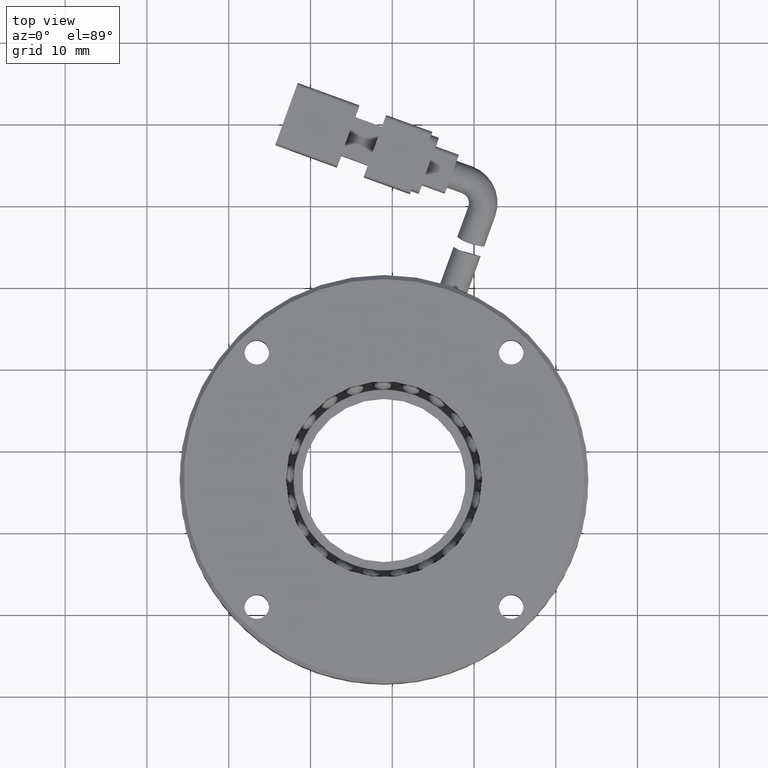
[diagram: clean part render]
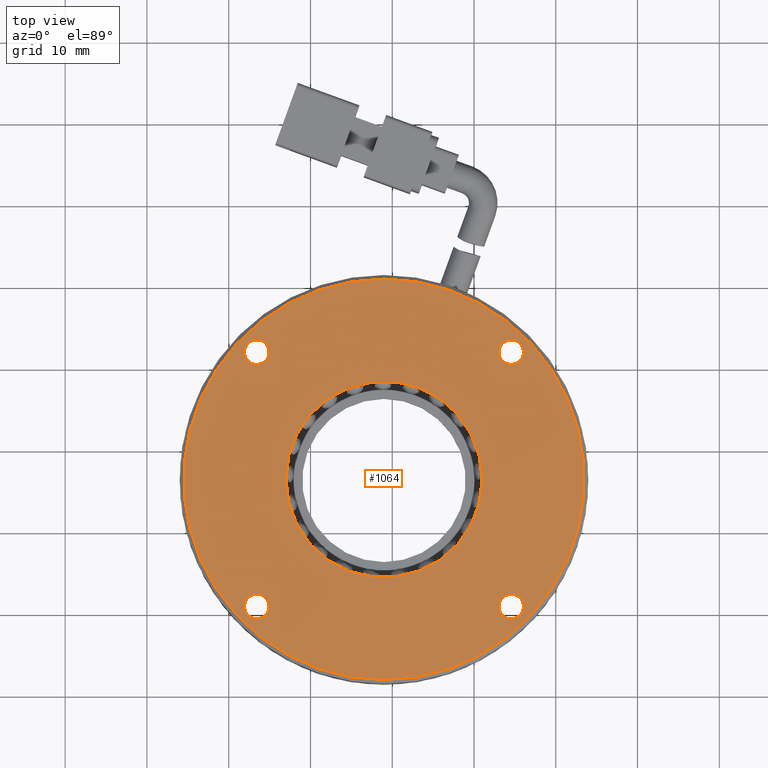
[diagram: same view with one face highlighted and labeled with its STEP entity id]
A machine part, top view. The second image highlights one B-rep face of the part: STEP entity #1064.
In plain terms, the highlighted planar face has unit normal (0, 0, -1).
Its self-contained STEP definition (entity closure, byte-faithful):
#1 = AXIS2_PLACEMENT_3D ( 'NONE', #21289, #9079, #23342 ) ;
#4 = ORIENTED_EDGE ( 'NONE', *, *, #25595, .F. ) ;
#264 = DIRECTION ( 'NONE',  ( 0.0000000000000000000, 0.0000000000000000000, 1.000000000000000000 ) ) ;
#384 = EDGE_CURVE ( 'NONE', #1278, #24763, #16489, .T. ) ;
#642 = CARTESIAN_POINT ( 'NONE',  ( -136.5647436173431400, 22.01707421157111700, 3.500000000000063100 ) ) ;
#692 = CARTESIAN_POINT ( 'NONE',  ( -121.0083944312392800, 6.460725025466879300, 3.500000000000063100 ) ) ;
#698 = CARTESIAN_POINT ( 'NONE',  ( -135.0647436173434800, -9.095624160637029800, 3.500000000000063100 ) ) ;
#1036 = DIRECTION ( 'NONE',  ( 0.0000000000000000000, 0.0000000000000000000, 1.000000000000000000 ) ) ;
#1064 = ADVANCED_FACE ( 'NONE', ( #18835, #3212, #13401, #7969, #14043, #2581 ), #21792, .F. ) ;
#1278 = VERTEX_POINT ( 'NONE', #698 ) ;
#1522 = CIRCLE ( 'NONE', #24963, 1.499999999999987600 ) ;
#2366 = CIRCLE ( 'NONE', #20573, 1.500000000000001300 ) ;
#2481 = ORIENTED_EDGE ( 'NONE', *, *, #20979, .F. ) ;
#2581 = FACE_OUTER_BOUND ( 'NONE', #9784, .T. ) ;
#2687 = DIRECTION ( 'NONE',  ( -1.000000000000000000, 0.0000000000000000000, 0.0000000000000000000 ) ) ;
#2729 = DIRECTION ( 'NONE',  ( 0.0000000000000000000, 1.000000000000000000, 0.0000000000000000000 ) ) ;
#2868 = AXIS2_PLACEMENT_3D ( 'NONE', #642, #14869, #2687 ) ;
#2955 = VERTEX_POINT ( 'NONE', #14260 ) ;
#3201 = EDGE_CURVE ( 'NONE', #23857, #16985, #1522, .T. ) ;
#3212 = FACE_BOUND ( 'NONE', #18114, .T. ) ;
#4093 = CARTESIAN_POINT ( 'NONE',  ( -136.5647436173434800, -9.095624160637029800, 3.500000000000063100 ) ) ;
#4476 = CARTESIAN_POINT ( 'NONE',  ( -121.0083944312392800, -18.03927497453311400, 3.500000000000063100 ) ) ;
#4509 = CARTESIAN_POINT ( 'NONE',  ( -105.4520452451352100, 22.01707421157089700, 3.500000000000063100 ) ) ;
#4648 = AXIS2_PLACEMENT_3D ( 'NONE', #19404, #7189, #21457 ) ;
#4786 = EDGE_CURVE ( 'NONE', #11087, #14031, #17167, .T. ) ;
#5348 = CARTESIAN_POINT ( 'NONE',  ( -138.0647436173431400, 22.01707421157111700, 3.500000000000063100 ) ) ;
#5422 = CARTESIAN_POINT ( 'NONE',  ( -138.0647436173434800, -9.095624160637029800, 3.500000000000063100 ) ) ;
#5609 = ORIENTED_EDGE ( 'NONE', *, *, #26111, .F. ) ;
#6135 = DIRECTION ( 'NONE',  ( -1.000000000000000000, 0.0000000000000000000, 0.0000000000000000000 ) ) ;
#6156 = ORIENTED_EDGE ( 'NONE', *, *, #22421, .F. ) ;
#6173 = DIRECTION ( 'NONE',  ( -1.000000000000000000, 0.0000000000000000000, -0.0000000000000000000 ) ) ;
#6403 = CIRCLE ( 'NONE', #2868, 1.500000000000001300 ) ;
#6551 = DIRECTION ( 'NONE',  ( -1.000000000000000000, 0.0000000000000000000, 0.0000000000000000000 ) ) ;
#7189 = DIRECTION ( 'NONE',  ( 0.0000000000000000000, 0.0000000000000000000, 1.000000000000000000 ) ) ;
#7196 = VERTEX_POINT ( 'NONE', #17591 ) ;
#7357 = EDGE_LOOP ( 'NONE', ( #4, #22325 ) ) ;
#7876 = EDGE_LOOP ( 'NONE', ( #5609, #16418 ) ) ;
#7969 = FACE_BOUND ( 'NONE', #21712, .T. ) ;
#8047 = CARTESIAN_POINT ( 'NONE',  ( -106.9520452451353100, -9.095624160637248300, 3.500000000000063100 ) ) ;
#8390 = DIRECTION ( 'NONE',  ( 0.0000000000000000000, 0.0000000000000000000, 1.000000000000000000 ) ) ;
#8692 = CARTESIAN_POINT ( 'NONE',  ( -103.9520452451353400, -9.095624160637248300, 3.500000000000063100 ) ) ;
#8956 = CARTESIAN_POINT ( 'NONE',  ( -121.0083944312392800, 6.460725025466879300, 3.500000000000063100 ) ) ;
#9079 = DIRECTION ( 'NONE',  ( 0.0000000000000000000, 0.0000000000000000000, 1.000000000000000000 ) ) ;
#9635 = CARTESIAN_POINT ( 'NONE',  ( -121.0083944312392800, 30.96072502546687100, 3.500000000000063100 ) ) ;
#9784 = EDGE_LOOP ( 'NONE', ( #17717, #23811 ) ) ;
#10249 = CARTESIAN_POINT ( 'NONE',  ( -109.0083944312392800, 6.460725025466879300, 3.500000000000062200 ) ) ;
#10552 = CARTESIAN_POINT ( 'NONE',  ( -136.5647436173431400, 22.01707421157111700, 3.500000000000063100 ) ) ;
#10984 = DIRECTION ( 'NONE',  ( 0.0000000000000000000, 1.000000000000000000, 0.0000000000000000000 ) ) ;
#11087 = VERTEX_POINT ( 'NONE', #4476 ) ;
#11489 = DIRECTION ( 'NONE',  ( -1.000000000000000000, 0.0000000000000000000, 0.0000000000000000000 ) ) ;
#11572 = DIRECTION ( 'NONE',  ( 0.0000000000000000000, 0.0000000000000000000, 1.000000000000000000 ) ) ;
#11686 = EDGE_LOOP ( 'NONE', ( #24937, #6156 ) ) ;
#11695 = DIRECTION ( 'NONE',  ( 0.0000000000000000000, 0.0000000000000000000, -1.000000000000000000 ) ) ;
#11863 = VERTEX_POINT ( 'NONE', #5348 ) ;
#12435 = CARTESIAN_POINT ( 'NONE',  ( -121.0083944312392800, 6.460725025466879300, 3.500000000000063100 ) ) ;
#12613 = DIRECTION ( 'NONE',  ( -1.000000000000000000, 0.0000000000000000000, 0.0000000000000000000 ) ) ;
#13182 = CIRCLE ( 'NONE', #25052, 24.49999999999999300 ) ;
#13201 = AXIS2_PLACEMENT_3D ( 'NONE', #10249, #11695, #6173 ) ;
#13208 = CARTESIAN_POINT ( 'NONE',  ( -121.0083944312392800, 6.460725025466879300, 3.500000000000063100 ) ) ;
#13360 = AXIS2_PLACEMENT_3D ( 'NONE', #12435, #264, #14484 ) ;
#13367 = CIRCLE ( 'NONE', #4648, 1.499999999999987600 ) ;
#13401 = FACE_BOUND ( 'NONE', #11686, .T. ) ;
#13791 = EDGE_CURVE ( 'NONE', #14031, #11087, #13182, .T. ) ;
#14031 = VERTEX_POINT ( 'NONE', #9635 ) ;
#14043 = FACE_BOUND ( 'NONE', #7876, .T. ) ;
#14260 = CARTESIAN_POINT ( 'NONE',  ( -109.0083944312392800, 6.460725025466881100, 3.500000000000063100 ) ) ;
#14484 = DIRECTION ( 'NONE',  ( -1.000000000000000000, 0.0000000000000000000, 0.0000000000000000000 ) ) ;
#14570 = EDGE_CURVE ( 'NONE', #24763, #1278, #23032, .T. ) ;
#14816 = EDGE_CURVE ( 'NONE', #18705, #25733, #23969, .T. ) ;
#14869 = DIRECTION ( 'NONE',  ( 0.0000000000000000000, 0.0000000000000000000, 1.000000000000000000 ) ) ;
#14903 = DIRECTION ( 'NONE',  ( 0.0000000000000000000, -8.673617379884035500E-018, -1.000000000000000000 ) ) ;
#15252 = DIRECTION ( 'NONE',  ( -1.000000000000000000, 0.0000000000000000000, 0.0000000000000000000 ) ) ;
#15679 = CARTESIAN_POINT ( 'NONE',  ( -106.9520452451352000, 22.01707421157089700, 3.500000000000063100 ) ) ;
#16418 = ORIENTED_EDGE ( 'NONE', *, *, #25023, .F. ) ;
#16489 = CIRCLE ( 'NONE', #19640, 1.500000000000001300 ) ;
#16878 = EDGE_CURVE ( 'NONE', #2955, #18058, #23390, .T. ) ;
#16985 = VERTEX_POINT ( 'NONE', #8692 ) ;
#17167 = CIRCLE ( 'NONE', #20428, 24.49999999999999300 ) ;
#17591 = CARTESIAN_POINT ( 'NONE',  ( -135.0647436173431400, 22.01707421157111700, 3.500000000000063100 ) ) ;
#17717 = ORIENTED_EDGE ( 'NONE', *, *, #13791, .F. ) ;
#18058 = VERTEX_POINT ( 'NONE', #21891 ) ;
#18114 = EDGE_LOOP ( 'NONE', ( #2481, #21644 ) ) ;
#18312 = ORIENTED_EDGE ( 'NONE', *, *, #384, .F. ) ;
#18335 = DIRECTION ( 'NONE',  ( 0.0000000000000000000, 0.0000000000000000000, 1.000000000000000000 ) ) ;
#18705 = VERTEX_POINT ( 'NONE', #22673 ) ;
#18764 = DIRECTION ( 'NONE',  ( 0.0000000000000000000, 0.0000000000000000000, 1.000000000000000000 ) ) ;
#18835 = FACE_BOUND ( 'NONE', #7357, .T. ) ;
#19404 = CARTESIAN_POINT ( 'NONE',  ( -105.4520452451353200, -9.095624160637248300, 3.500000000000063100 ) ) ;
#19640 = AXIS2_PLACEMENT_3D ( 'NONE', #25958, #11572, #11489 ) ;
#20428 = AXIS2_PLACEMENT_3D ( 'NONE', #8956, #23226, #10984 ) ;
#20537 = ORIENTED_EDGE ( 'NONE', *, *, #14570, .F. ) ;
#20573 = AXIS2_PLACEMENT_3D ( 'NONE', #10552, #24831, #12613 ) ;
#20621 = CARTESIAN_POINT ( 'NONE',  ( -105.4520452451353200, -9.095624160637248300, 3.500000000000063100 ) ) ;
#20979 = EDGE_CURVE ( 'NONE', #25733, #18705, #24392, .T. ) ;
#21117 = CIRCLE ( 'NONE', #21283, 12.00000000000001100 ) ;
#21283 = AXIS2_PLACEMENT_3D ( 'NONE', #13208, #1036, #15252 ) ;
#21289 = CARTESIAN_POINT ( 'NONE',  ( -105.4520452451352100, 22.01707421157089700, 3.500000000000063100 ) ) ;
#21457 = DIRECTION ( 'NONE',  ( -1.000000000000000000, 0.0000000000000000000, 0.0000000000000000000 ) ) ;
#21644 = ORIENTED_EDGE ( 'NONE', *, *, #14816, .F. ) ;
#21712 = EDGE_LOOP ( 'NONE', ( #20537, #18312 ) ) ;
#21792 = PLANE ( 'NONE',  #13201 ) ;
#21891 = CARTESIAN_POINT ( 'NONE',  ( -133.0083944312393100, 6.460725025466879300, 3.500000000000063100 ) ) ;
#22325 = ORIENTED_EDGE ( 'NONE', *, *, #16878, .F. ) ;
#22421 = EDGE_CURVE ( 'NONE', #16985, #23857, #13367, .T. ) ;
#22671 = DIRECTION ( 'NONE',  ( -1.000000000000000000, 0.0000000000000000000, 0.0000000000000000000 ) ) ;
#22673 = CARTESIAN_POINT ( 'NONE',  ( -103.9520452451352200, 22.01707421157089700, 3.500000000000063100 ) ) ;
#23032 = CIRCLE ( 'NONE', #26105, 1.500000000000001300 ) ;
#23226 = DIRECTION ( 'NONE',  ( 0.0000000000000000000, -8.673617379884035500E-018, -1.000000000000000000 ) ) ;
#23342 = DIRECTION ( 'NONE',  ( -1.000000000000000000, 0.0000000000000000000, 0.0000000000000000000 ) ) ;
#23390 = CIRCLE ( 'NONE', #13360, 12.00000000000001100 ) ;
#23811 = ORIENTED_EDGE ( 'NONE', *, *, #4786, .F. ) ;
#23857 = VERTEX_POINT ( 'NONE', #8047 ) ;
#23969 = CIRCLE ( 'NONE', #1, 1.499999999999987600 ) ;
#24392 = CIRCLE ( 'NONE', #24738, 1.499999999999987600 ) ;
#24738 = AXIS2_PLACEMENT_3D ( 'NONE', #4509, #18764, #6551 ) ;
#24763 = VERTEX_POINT ( 'NONE', #5422 ) ;
#24831 = DIRECTION ( 'NONE',  ( 0.0000000000000000000, 0.0000000000000000000, 1.000000000000000000 ) ) ;
#24937 = ORIENTED_EDGE ( 'NONE', *, *, #3201, .F. ) ;
#24963 = AXIS2_PLACEMENT_3D ( 'NONE', #20621, #8390, #22671 ) ;
#25023 = EDGE_CURVE ( 'NONE', #7196, #11863, #2366, .T. ) ;
#25052 = AXIS2_PLACEMENT_3D ( 'NONE', #692, #14903, #2729 ) ;
#25595 = EDGE_CURVE ( 'NONE', #18058, #2955, #21117, .T. ) ;
#25733 = VERTEX_POINT ( 'NONE', #15679 ) ;
#25958 = CARTESIAN_POINT ( 'NONE',  ( -136.5647436173434800, -9.095624160637029800, 3.500000000000063100 ) ) ;
#26105 = AXIS2_PLACEMENT_3D ( 'NONE', #4093, #18335, #6135 ) ;
#26111 = EDGE_CURVE ( 'NONE', #11863, #7196, #6403, .T. ) ;